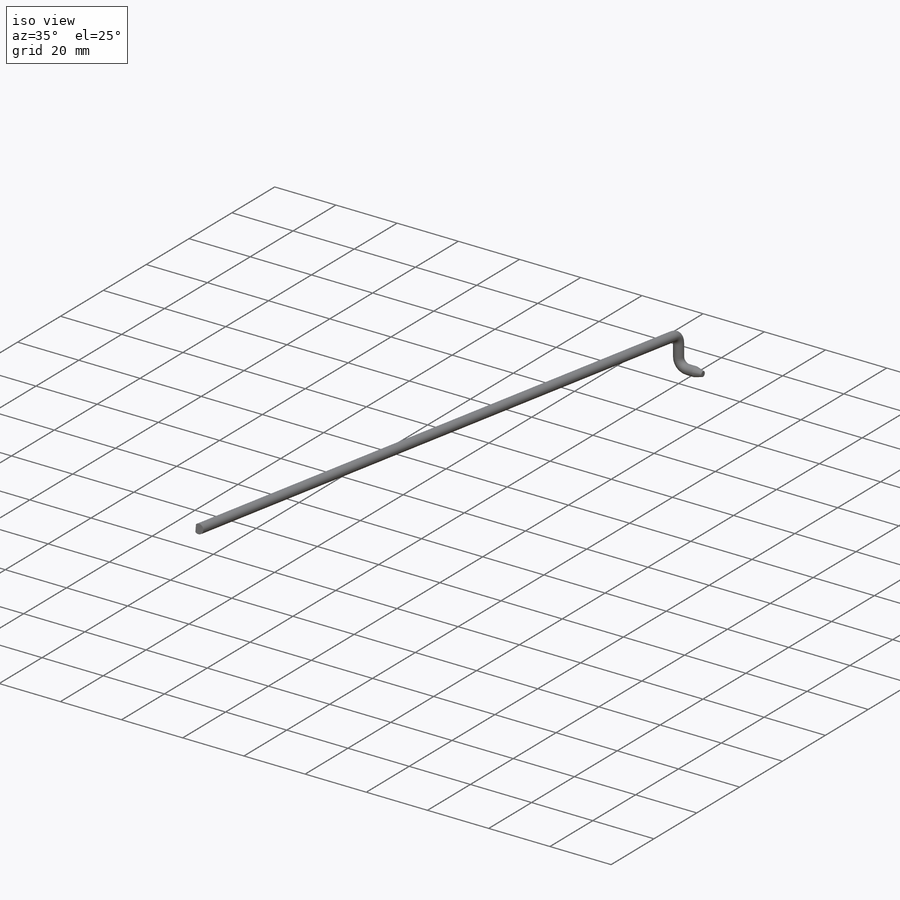
[diagram: iso view]
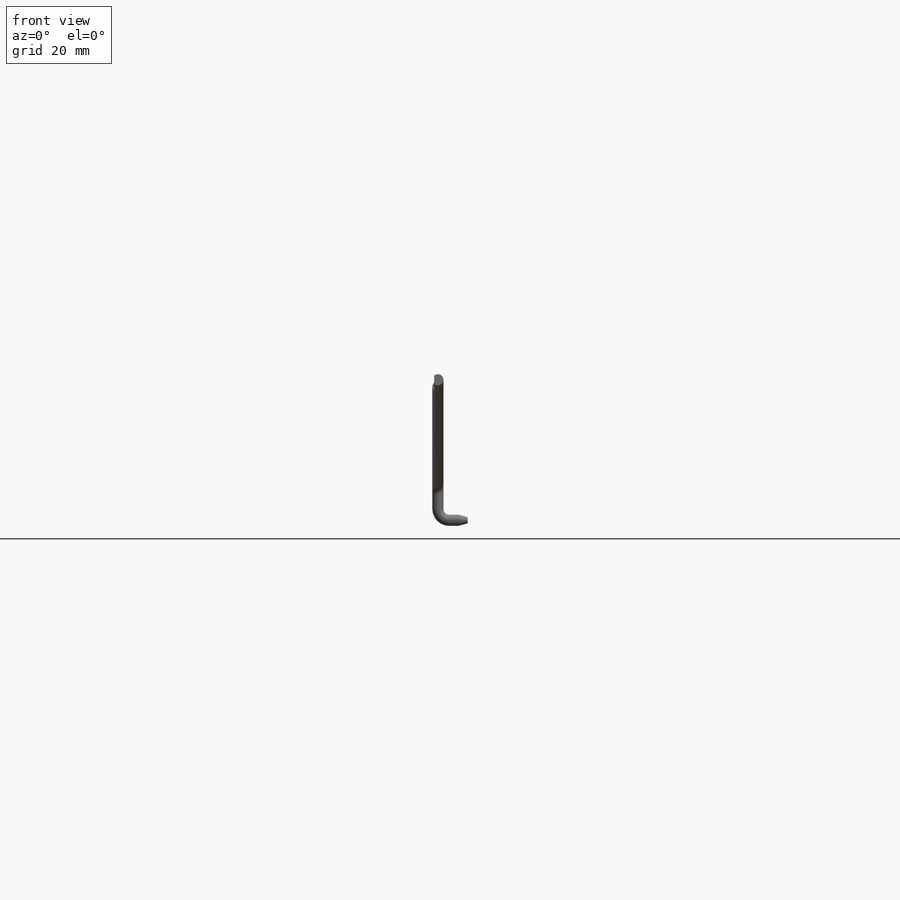
[diagram: front view]
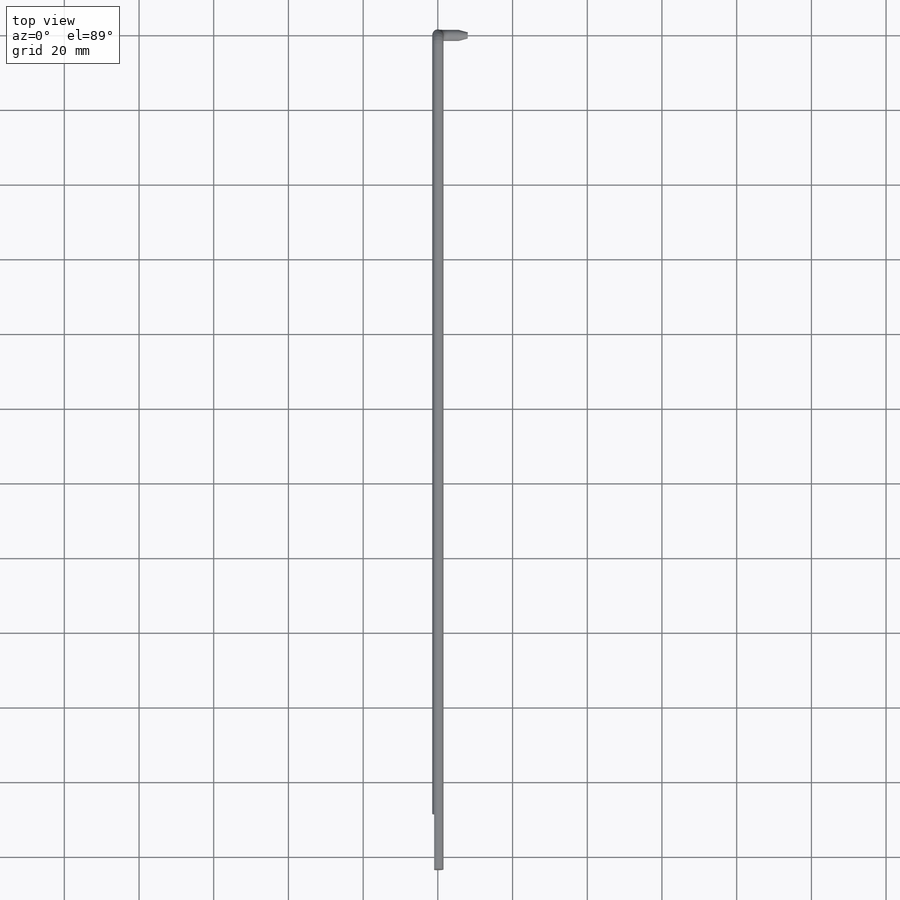
[diagram: top view]
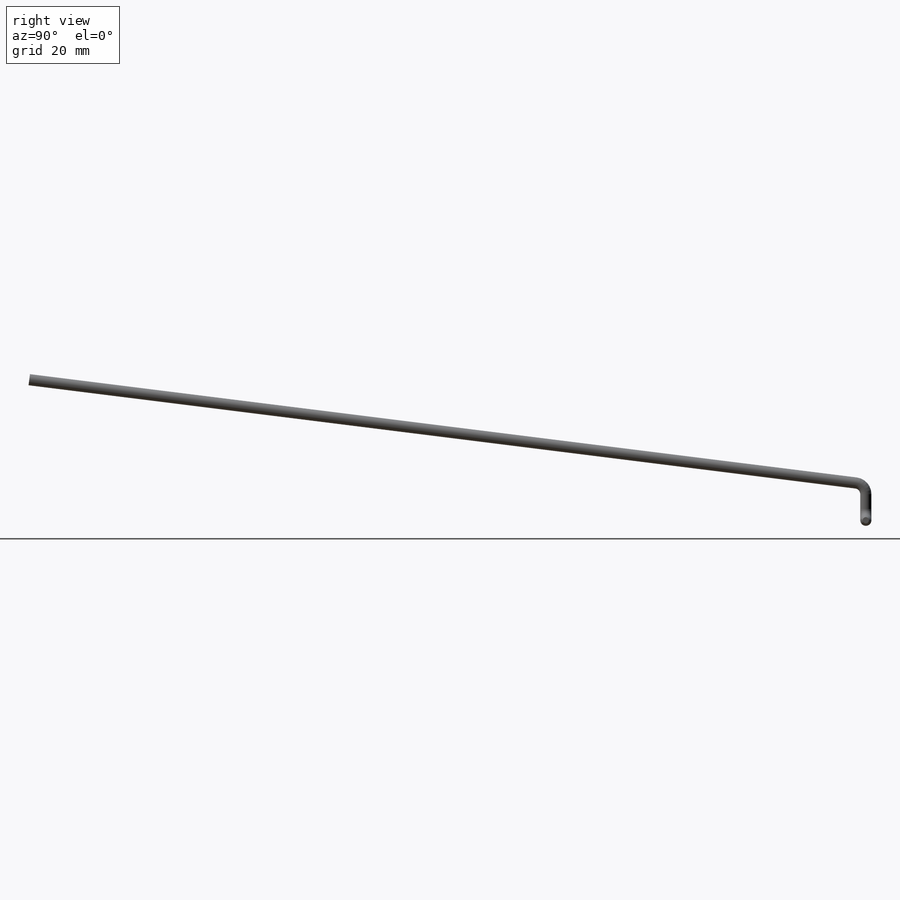
[diagram: right view]
SOLIDWORKS PART (.sldprt)
format: sldprt  version: not decoded by parser v0  size: 138,752 bytes
history: native  units: mm
features: sketch x6, sweep x2, plane x2, material x1, chamfer x1, cut_extrude x1 (+15 scaffold rows collapsed)
feature tree (28):
  scaffold x15  (default folders/planes/origin — collapsed)
  material  "Material <not specified>"
  sketch  "Sketch1"  dims[D2=3.0mm D1=2.0mm D3=219.0mm D4=32.0mm D5=5.0mm]
  sketch  "Sketch2"  dims[D1=3.0mm]
  sweep  "Sweep1"
  sketch  "Sketch3"  dims[D1=3.0mm D2=5.0mm D3=2.0mm]
  sketch  "Sketch4"  dims[D1=0.0mm]
  sweep  "Sweep2"
  chamfer  "Chamfer1"  Distance=2.5mm Angle=15deg
  plane  "Plane1"  Offset=1mm
  sketch  "Sketch5"  dims[D1=4.0mm D2=15.0mm]
  cut_extrude  "Cut-Extrude1"  [1 undecoded]
  plane  "Plane2"
  sketch  "Sketch6"  dims[D1=5.0mm]
decode coverage: 7 of 10 modeling features carry decoded parameters
note: 1 parameter value undecoded
note: suppression state not decoded; provenance and decode notes live in map.json
